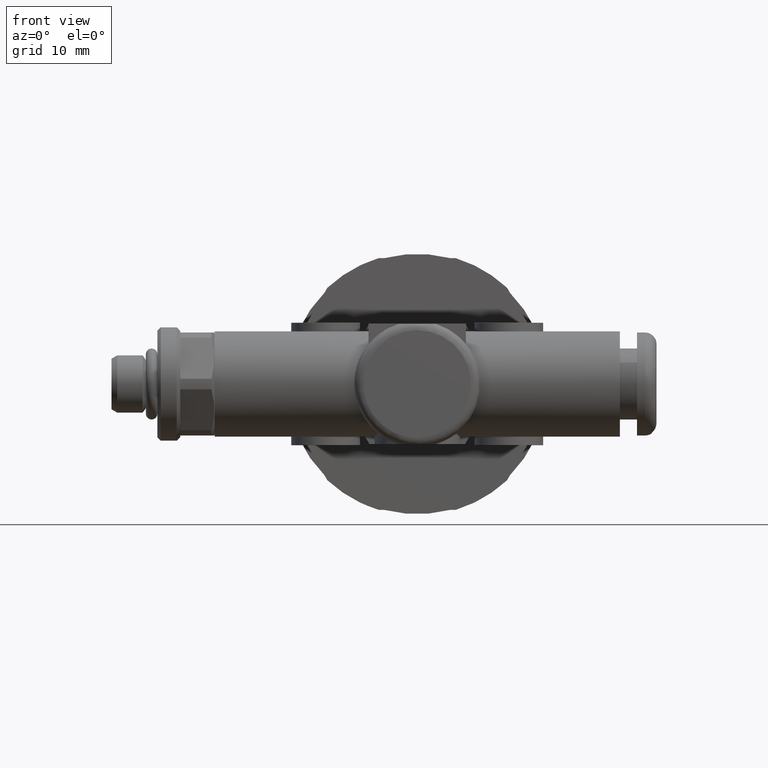
[diagram: clean part render]
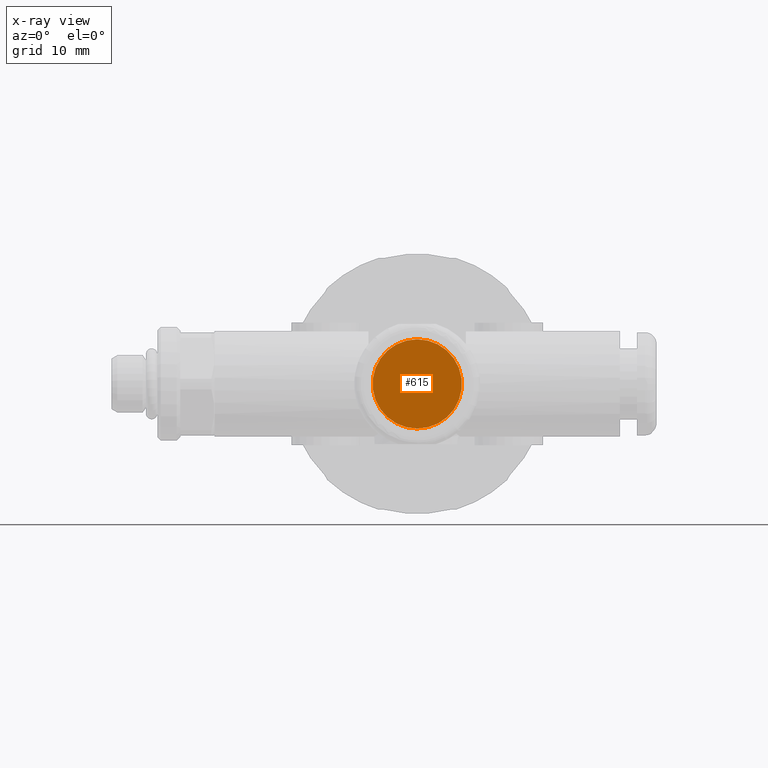
[diagram: x-ray — body ghosted, one internal face saturated and labeled with its STEP entity id]
A machine part, front view, then the same camera in x-ray: the body is ghosted and one INTERNAL B-rep face — a face not visible from any outside direction — is saturated and labeled: STEP entity #615.
In plain terms, the highlighted planar face has unit normal (0, 1, 0).
Its self-contained STEP definition (entity closure, byte-faithful):
#615 = ADVANCED_FACE( '', ( #1318 ), #1319, .T. );
#1318 = FACE_OUTER_BOUND( '', #2104, .T. );
#1319 = PLANE( '', #2105 );
#2104 = EDGE_LOOP( '', ( #3569 ) );
#2105 = AXIS2_PLACEMENT_3D( '', #3570, #3571, #3572 );
#3569 = ORIENTED_EDGE( '', *, *, #4290, .F. );
#3570 = CARTESIAN_POINT( '', ( 3.90000000000000, -5.00000000000000, 0.000000000000000 ) );
#3571 = DIRECTION( '', ( 0.000000000000000, 1.00000000000000, 0.000000000000000 ) );
#3572 = DIRECTION( '', ( 0.000000000000000, -0.000000000000000, 1.00000000000000 ) );
#4290 = EDGE_CURVE( '', #5015, #5015, #5016, .T. );
#5015 = VERTEX_POINT( '', #6081 );
#5016 = CIRCLE( '', #6082, 3.90000000000000 );
#6081 = CARTESIAN_POINT( '', ( 0.000000000000000, -5.00000000000000, -3.90000000000000 ) );
#6082 = AXIS2_PLACEMENT_3D( '', #8044, #8045, #8046 );
#8044 = CARTESIAN_POINT( '', ( 0.000000000000000, -5.00000000000000, 0.000000000000000 ) );
#8045 = DIRECTION( '', ( 0.000000000000000, -1.00000000000000, -0.000000000000000 ) );
#8046 = DIRECTION( '', ( 0.000000000000000, 0.000000000000000, -1.00000000000000 ) );